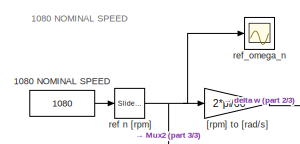
[diagram: root canvas - part 1/3, top left region]
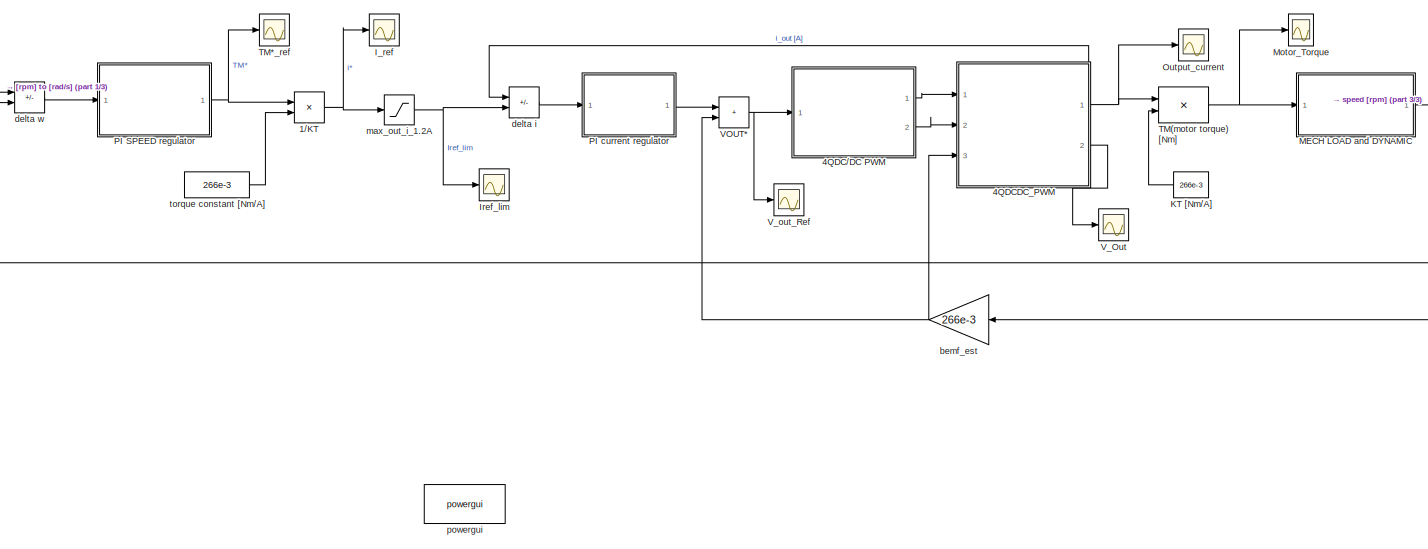
[diagram: root canvas - part 2/3, center side, full height]
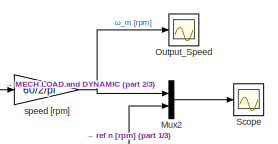
[diagram: root canvas - part 3/3, top right region]
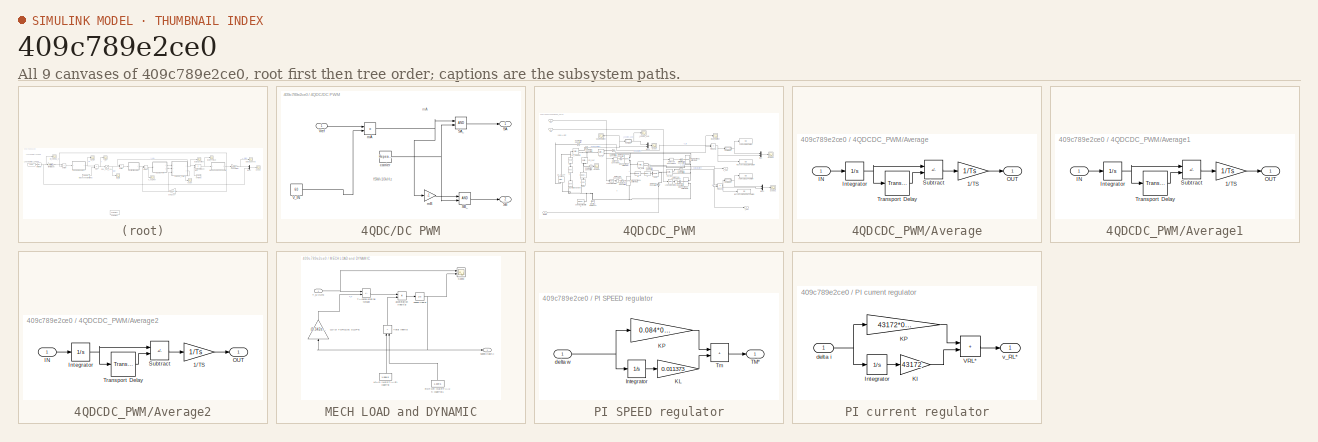
[diagram: thumbnail index - all 9 canvases of the model, root first then tree order]
MODEL slx_409c789e2ce0
KIND model
CONFIG AbsTol = auto
CONFIG EnableMultiTasking = off
CONFIG FixedStep = auto
CONFIG MaxStep = 0.5e-4
CONFIG MinStep = auto
CONFIG RelTol = 1e-3
CONFIG SampleTimeConstraint = Unconstrained
CONFIG SolverName = VariableStepAuto
CONFIG StartTime = 0.0
CONFIG StopTime = 10.0
BLOCK [Product] 1//KT
  Inputs = */
  Ports = [2, 1]
BLOCK [Constant] 1080 NOMINAL SPEED
  Value = 1080
BLOCK [SubSystem] 4QDC//DC PWM
  Ports = [1, 2]
  RequestExecContextInheritance = off
BLOCK [Outport] 4QDC//DC PWM/SA
  VectorParamsAs1DForOutWhenUnconnected = off
BLOCK [RelationalOperator] 4QDC//DC PWM/SA_
  InputSameDT = off
  OutDataTypeStr = boolean
  Ports = [2, 1]
  RndMeth = Simplest
BLOCK [Outport] 4QDC//DC PWM/SB
  Port = 2
  VectorParamsAs1DForOutWhenUnconnected = off
BLOCK [RelationalOperator] 4QDC//DC PWM/SB_
  InputSameDT = off
  OutDataTypeStr = boolean
  Ports = [2, 1]
  RndMeth = Simplest
BLOCK [Constant] 4QDC//DC PWM/V_IN
  Value = 60
BLOCK [Inport] 4QDC//DC PWM/Vref
BLOCK [Reference] 4QDC//DC PWM/carrier  REF=simulink/Sources/Repeating
Sequence
  Ports = [0, 1]
  SourceBlock = simulink/Sources/Repeating\nSequence
  SourceProductBaseCode = SL
  SourceType = Repeating table
BLOCK [Product] 4QDC//DC PWM/mA
  Inputs = */
  Ports = [2, 1]
BLOCK [Gain] 4QDC//DC PWM/mB
  Gain = -1
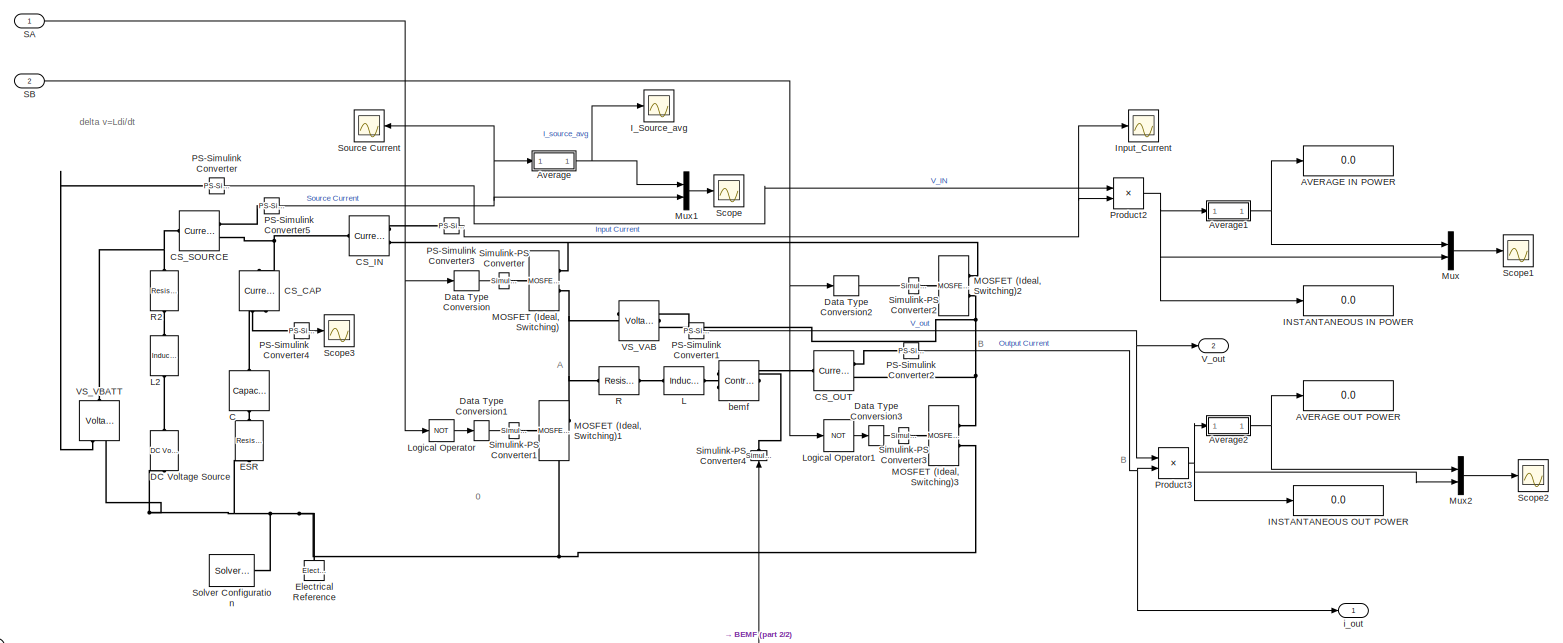
[diagram: 4QDCDC_PWM - part 1/2, most of the canvas]
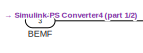
[diagram: 4QDCDC_PWM - part 2/2, bottom left region]
BLOCK [SubSystem] 4QDCDC_PWM
  Ports = [3, 2]
  RequestExecContextInheritance = off
BLOCK [Display] 4QDCDC_PWM/AVERAGE IN POWER
  Decimation = 1
  Ports = [1]
BLOCK [Display] 4QDCDC_PWM/AVERAGE OUT POWER
  Decimation = 1
  Ports = [1]
BLOCK [SubSystem] 4QDCDC_PWM/Average
  Ports = [1, 1]
  RequestExecContextInheritance = off
BLOCK [Gain] 4QDCDC_PWM/Average/1//TS
  Gain = 1/Ts
BLOCK [Inport] 4QDCDC_PWM/Average/IN
  NameLocation = top
BLOCK [Integrator] 4QDCDC_PWM/Average/Integrator
  Ports = [1, 1]
BLOCK [Outport] 4QDCDC_PWM/Average/OUT
  VectorParamsAs1DForOutWhenUnconnected = off
BLOCK [Sum] 4QDCDC_PWM/Average/Subtract
  IconShape = rectangular
  Inputs = +-
  Ports = [2, 1]
BLOCK [TransportDelay] 4QDCDC_PWM/Average/Transport Delay
  BufferSize = 5120
  DelayTime = Ts
  Ports = [1, 1]
BLOCK [SubSystem] 4QDCDC_PWM/Average1
  NameLocation = top
  Ports = [1, 1]
  RequestExecContextInheritance = off
BLOCK [Gain] 4QDCDC_PWM/Average1/1//TS
  Gain = 1/Ts
BLOCK [Inport] 4QDCDC_PWM/Average1/IN
  NameLocation = top
BLOCK [Integrator] 4QDCDC_PWM/Average1/Integrator
  Ports = [1, 1]
BLOCK [Outport] 4QDCDC_PWM/Average1/OUT
  VectorParamsAs1DForOutWhenUnconnected = off
BLOCK [Sum] 4QDCDC_PWM/Average1/Subtract
  IconShape = rectangular
  Inputs = +-
  Ports = [2, 1]
BLOCK [TransportDelay] 4QDCDC_PWM/Average1/Transport Delay
  BufferSize = 5120
  DelayTime = Ts
  Ports = [1, 1]
BLOCK [SubSystem] 4QDCDC_PWM/Average2
  Ports = [1, 1]
  RequestExecContextInheritance = off
BLOCK [Gain] 4QDCDC_PWM/Average2/1//TS
  Gain = 1/Ts
BLOCK [Inport] 4QDCDC_PWM/Average2/IN
  NameLocation = top
BLOCK [Integrator] 4QDCDC_PWM/Average2/Integrator
  Ports = [1, 1]
BLOCK [Outport] 4QDCDC_PWM/Average2/OUT
  VectorParamsAs1DForOutWhenUnconnected = off
BLOCK [Sum] 4QDCDC_PWM/Average2/Subtract
  IconShape = rectangular
  Inputs = +-
  Ports = [2, 1]
BLOCK [TransportDelay] 4QDCDC_PWM/Average2/Transport Delay
  BufferSize = 5120
  DelayTime = Ts
  Ports = [1, 1]
BLOCK [Inport] 4QDCDC_PWM/BEMF
  Port = 3
BLOCK [Reference] 4QDCDC_PWM/C  REF=fl_lib/Electrical/Electrical Elements/Capacitor
  NameLocation = left
  Ports = [0, 0, 0, 0, 0, 1, 1]
  SourceBlock = fl_lib/Electrical/Electrical Elements/Capacitor
  SourceProductBaseCode = SS
  SourceType = Capacitor
BLOCK [Reference] 4QDCDC_PWM/CS_CAP  REF=fl_lib/Electrical/Electrical Sensors/Current Sensor
  NameLocation = left
  Ports = [0, 0, 0, 0, 0, 1, 2]
  SourceBlock = fl_lib/Electrical/Electrical Sensors/Current Sensor
  SourceProductBaseCode = SS
  SourceType = Current Sensor
BLOCK [Reference] 4QDCDC_PWM/CS_IN  REF=fl_lib/Electrical/Electrical Sensors/Current Sensor
  Ports = [0, 0, 0, 0, 0, 1, 2]
  SourceBlock = fl_lib/Electrical/Electrical Sensors/Current Sensor
  SourceProductBaseCode = SS
  SourceType = Current Sensor
BLOCK [Reference] 4QDCDC_PWM/CS_OUT  REF=fl_lib/Electrical/Electrical Sensors/Current Sensor
  Ports = [0, 0, 0, 0, 0, 1, 2]
  SourceBlock = fl_lib/Electrical/Electrical Sensors/Current Sensor
  SourceProductBaseCode = SS
  SourceType = Current Sensor
BLOCK [Reference] 4QDCDC_PWM/CS_SOURCE  REF=fl_lib/Electrical/Electrical Sensors/Current Sensor
  Ports = [0, 0, 0, 0, 0, 1, 2]
  SourceBlock = fl_lib/Electrical/Electrical Sensors/Current Sensor
  SourceProductBaseCode = SS
  SourceType = Current Sensor
BLOCK [Reference] 4QDCDC_PWM/DC Voltage Source  REF=fl_lib/Electrical/Electrical Sources/DC Voltage Source
  NameLocation = right
  Ports = [0, 0, 0, 0, 0, 1, 1]
  SourceBlock = fl_lib/Electrical/Electrical Sources/DC Voltage Source
  SourceProductBaseCode = SS
  SourceType = DC Voltage Source
BLOCK [DataTypeConversion] 4QDCDC_PWM/Data Type Conversion
  RndMeth = Floor
  SaturateOnIntegerOverflow = off
BLOCK [DataTypeConversion] 4QDCDC_PWM/Data Type Conversion1
  RndMeth = Floor
  SaturateOnIntegerOverflow = off
BLOCK [DataTypeConversion] 4QDCDC_PWM/Data Type Conversion2
  RndMeth = Floor
  SaturateOnIntegerOverflow = off
BLOCK [DataTypeConversion] 4QDCDC_PWM/Data Type Conversion3
  RndMeth = Floor
  SaturateOnIntegerOverflow = off
BLOCK [Reference] 4QDCDC_PWM/ESR  REF=ee_lib/Passive/Resistor
  NameLocation = left
  Ports = [0, 0, 0, 0, 0, 1, 1]
  SourceBlock = ee_lib/Passive/Resistor
  SourceProductBaseCode = PS
  SourceType = Resistor
BLOCK [Reference] 4QDCDC_PWM/Electrical Reference  REF=fl_lib/Electrical/Electrical Elements/Electrical Reference
  NameLocation = right
  Ports = [0, 0, 0, 0, 0, 1]
  SourceBlock = fl_lib/Electrical/Electrical Elements/Electrical Reference
  SourceProductBaseCode = SS
  SourceType = Electrical Reference
BLOCK [Display] 4QDCDC_PWM/INSTANTANEOUS IN POWER
  Decimation = 1
  Ports = [1]
BLOCK [Display] 4QDCDC_PWM/INSTANTANEOUS OUT POWER
  Decimation = 1
  Ports = [1]
BLOCK [Scope] 4QDCDC_PWM/I_Source_avg
  Floating = off
  NumInputPorts = 1
  Ports = [1]
  ScopeSpecificationString = Simulink.scopes.TimeScopeBlockCfg('CurrentConfiguration', extmgr.ConfigurationSet(extmgr.Configuration('Core','General UI',true),extmgr.Configuration('Core','Source UI',true),extmgr.Configuration('Sources','WiredSimulink',true,'DataLoggingVariableName','ScopeData6'),extmgr.Configuration('Visuals','Time Domain',true),extmgr.Configuration('Tools','Plot Navigation',true),extmgr.Configuration('Tools',...<+40ch>
BLOCK [Scope] 4QDCDC_PWM/Input_Current
  Floating = off
  NumInputPorts = 1
  Ports = [1]
  ScopeSpecificationString = Simulink.scopes.TimeScopeBlockCfg('CurrentConfiguration', extmgr.ConfigurationSet(extmgr.Configuration('Core','General UI',true),extmgr.Configuration('Core','Source UI',true),extmgr.Configuration('Sources','WiredSimulink',true,'DataLoggingVariableName','ScopeData8'),extmgr.Configuration('Visuals','Time Domain',true),extmgr.Configuration('Tools','Plot Navigation',true),extmgr.Configuration('Tools',...<+40ch>
BLOCK [Reference] 4QDCDC_PWM/L  REF=ee_lib/Passive/Inductor
  Ports = [0, 0, 0, 0, 0, 1, 1]
  SourceBlock = ee_lib/Passive/Inductor
  SourceProductBaseCode = PS
  SourceType = Inductor
BLOCK [Reference] 4QDCDC_PWM/L2  REF=ee_lib/Passive/Inductor
  NameLocation = left
  Ports = [0, 0, 0, 0, 0, 1, 1]
  SourceBlock = ee_lib/Passive/Inductor
  SourceProductBaseCode = PS
  SourceType = Inductor
BLOCK [Logic] 4QDCDC_PWM/Logical Operator
  AllPortsSameDT = off
  Operator = NOT
  OutDataTypeStr = boolean
  Ports = [1, 1]
BLOCK [Logic] 4QDCDC_PWM/Logical Operator1
  AllPortsSameDT = off
  Operator = NOT
  OutDataTypeStr = boolean
  Ports = [1, 1]
BLOCK [Reference] 4QDCDC_PWM/MOSFET (Ideal, Switching)  REF=ee_lib/Semiconductors &
Converters/MOSFET
(Ideal,
Switching)
  Ports = [0, 0, 0, 0, 0, 1, 2]
  SourceBlock = ee_lib/Semiconductors &\nConverters/MOSFET\n(Ideal,\nSwitching)
  SourceProductBaseCode = PS
  SourceType = MOSFET\n(Ideal,\nSwitching)
BLOCK [Reference] 4QDCDC_PWM/MOSFET (Ideal, Switching)1  REF=ee_lib/Semiconductors &
Converters/MOSFET
(Ideal,
Switching)
  Ports = [0, 0, 0, 0, 0, 1, 2]
  SourceBlock = ee_lib/Semiconductors &\nConverters/MOSFET\n(Ideal,\nSwitching)
  SourceProductBaseCode = PS
  SourceType = MOSFET\n(Ideal,\nSwitching)
BLOCK [Reference] 4QDCDC_PWM/MOSFET (Ideal, Switching)2  REF=ee_lib/Semiconductors &
Converters/MOSFET
(Ideal,
Switching)
  Ports = [0, 0, 0, 0, 0, 1, 2]
  SourceBlock = ee_lib/Semiconductors &\nConverters/MOSFET\n(Ideal,\nSwitching)
  SourceProductBaseCode = PS
  SourceType = MOSFET\n(Ideal,\nSwitching)
BLOCK [Reference] 4QDCDC_PWM/MOSFET (Ideal, Switching)3  REF=ee_lib/Semiconductors &
Converters/MOSFET
(Ideal,
Switching)
  Ports = [0, 0, 0, 0, 0, 1, 2]
  SourceBlock = ee_lib/Semiconductors &\nConverters/MOSFET\n(Ideal,\nSwitching)
  SourceProductBaseCode = PS
  SourceType = MOSFET\n(Ideal,\nSwitching)
BLOCK [Mux] 4QDCDC_PWM/Mux
  DisplayOption = bar
  Inputs = 2
  Ports = [2, 1]
BLOCK [Mux] 4QDCDC_PWM/Mux1
  DisplayOption = bar
  Inputs = 2
  Ports = [2, 1]
BLOCK [Mux] 4QDCDC_PWM/Mux2
  DisplayOption = bar
  Inputs = 2
  Ports = [2, 1]
BLOCK [Reference] 4QDCDC_PWM/PS-Simulink Converter  REF=nesl_utility/PS-Simulink
Converter
  Ports = [0, 1, 0, 0, 0, 1]
  SourceBlock = nesl_utility/PS-Simulink\nConverter
  SourceProductBaseCode = SS
  SourceType = PS-Simulink\nConverter
BLOCK [Reference] 4QDCDC_PWM/PS-Simulink Converter1  REF=nesl_utility/PS-Simulink
Converter
  Ports = [0, 1, 0, 0, 0, 1]
  SourceBlock = nesl_utility/PS-Simulink\nConverter
  SourceProductBaseCode = SS
  SourceType = PS-Simulink\nConverter
BLOCK [Reference] 4QDCDC_PWM/PS-Simulink Converter2  REF=nesl_utility/PS-Simulink
Converter
  Ports = [0, 1, 0, 0, 0, 1]
  SourceBlock = nesl_utility/PS-Simulink\nConverter
  SourceProductBaseCode = SS
  SourceType = PS-Simulink\nConverter
BLOCK [Reference] 4QDCDC_PWM/PS-Simulink Converter3  REF=nesl_utility/PS-Simulink
Converter
  Ports = [0, 1, 0, 0, 0, 1]
  SourceBlock = nesl_utility/PS-Simulink\nConverter
  SourceProductBaseCode = SS
  SourceType = PS-Simulink\nConverter
BLOCK [Reference] 4QDCDC_PWM/PS-Simulink Converter4  REF=nesl_utility/PS-Simulink
Converter
  Ports = [0, 1, 0, 0, 0, 1]
  SourceBlock = nesl_utility/PS-Simulink\nConverter
  SourceProductBaseCode = SS
  SourceType = PS-Simulink\nConverter
BLOCK [Reference] 4QDCDC_PWM/PS-Simulink Converter5  REF=nesl_utility/PS-Simulink
Converter
  Ports = [0, 1, 0, 0, 0, 1]
  SourceBlock = nesl_utility/PS-Simulink\nConverter
  SourceProductBaseCode = SS
  SourceType = PS-Simulink\nConverter
BLOCK [Product] 4QDCDC_PWM/Product2
  Ports = [2, 1]
BLOCK [Product] 4QDCDC_PWM/Product3
  Ports = [2, 1]
BLOCK [Reference] 4QDCDC_PWM/R  REF=ee_lib/Passive/Resistor
  Ports = [0, 0, 0, 0, 0, 1, 1]
  SourceBlock = ee_lib/Passive/Resistor
  SourceProductBaseCode = PS
  SourceType = Resistor
BLOCK [Reference] 4QDCDC_PWM/R2  REF=ee_lib/Passive/Resistor
  NameLocation = left
  Ports = [0, 0, 0, 0, 0, 1, 1]
  SourceBlock = ee_lib/Passive/Resistor
  SourceProductBaseCode = PS
  SourceType = Resistor
BLOCK [Inport] 4QDCDC_PWM/SA
BLOCK [Inport] 4QDCDC_PWM/SB
  Port = 2
BLOCK [Scope] 4QDCDC_PWM/Scope
  Floating = off
  NumInputPorts = 1
  Ports = [1]
  ScopeSpecificationString = Simulink.scopes.TimeScopeBlockCfg('CurrentConfiguration', extmgr.ConfigurationSet(extmgr.Configuration('Core','General UI',true),extmgr.Configuration('Core','Source UI',true),extmgr.Configuration('Sources','WiredSimulink',true,'DataLoggingVariableName','ScopeData1'),extmgr.Configuration('Visuals','Time Domain',true,'SerializedDisplays',{struct('MinYLimReal','-6.5144','MaxYLimReal','58.62956','YLab...<+1527ch>
BLOCK [Scope] 4QDCDC_PWM/Scope1
  Floating = off
  NumInputPorts = 1
  Ports = [1]
  ScopeSpecificationString = Simulink.scopes.TimeScopeBlockCfg('CurrentConfiguration', extmgr.ConfigurationSet(extmgr.Configuration('Core','General UI',true),extmgr.Configuration('Core','Source UI',true),extmgr.Configuration('Sources','WiredSimulink',true,'DataLoggingVariableName','ScopeData12'),extmgr.Configuration('Visuals','Time Domain',true),extmgr.Configuration('Tools','Plot Navigation',true),extmgr.Configuration('Tools'...<+41ch>
BLOCK [Scope] 4QDCDC_PWM/Scope2
  Floating = off
  NumInputPorts = 1
  Ports = [1]
  ScopeSpecificationString = Simulink.scopes.TimeScopeBlockCfg('CurrentConfiguration', extmgr.ConfigurationSet(extmgr.Configuration('Core','General UI',true),extmgr.Configuration('Core','Source UI',true),extmgr.Configuration('Sources','WiredSimulink',true,'DataLoggingVariableName','ScopeData13'),extmgr.Configuration('Visuals','Time Domain',true),extmgr.Configuration('Tools','Plot Navigation',true),extmgr.Configuration('Tools'...<+41ch>
BLOCK [Scope] 4QDCDC_PWM/Scope3
  Floating = off
  NumInputPorts = 1
  Ports = [1]
  ScopeSpecificationString = Simulink.scopes.TimeScopeBlockCfg('CurrentConfiguration', extmgr.ConfigurationSet(extmgr.Configuration('Core','General UI',true),extmgr.Configuration('Core','Source UI',true),extmgr.Configuration('Sources','WiredSimulink',true,'DataLoggingVariableName','ScopeData15'),extmgr.Configuration('Visuals','Time Domain',true,'SerializedDisplays',{struct('MinYLimReal','-3.8667','MaxYLimReal','34.80091','YLa...<+1384ch>
BLOCK [Reference] 4QDCDC_PWM/Simulink-PS Converter  REF=nesl_utility/Simulink-PS
Converter
  Ports = [1, 0, 0, 0, 0, 0, 1]
  SourceBlock = nesl_utility/Simulink-PS\nConverter
  SourceProductBaseCode = SS
  SourceType = Simulink-PS\nConverter
BLOCK [Reference] 4QDCDC_PWM/Simulink-PS Converter1  REF=nesl_utility/Simulink-PS
Converter
  Ports = [1, 0, 0, 0, 0, 0, 1]
  SourceBlock = nesl_utility/Simulink-PS\nConverter
  SourceProductBaseCode = SS
  SourceType = Simulink-PS\nConverter
BLOCK [Reference] 4QDCDC_PWM/Simulink-PS Converter2  REF=nesl_utility/Simulink-PS
Converter
  Ports = [1, 0, 0, 0, 0, 0, 1]
  SourceBlock = nesl_utility/Simulink-PS\nConverter
  SourceProductBaseCode = SS
  SourceType = Simulink-PS\nConverter
BLOCK [Reference] 4QDCDC_PWM/Simulink-PS Converter3  REF=nesl_utility/Simulink-PS
Converter
  Ports = [1, 0, 0, 0, 0, 0, 1]
  SourceBlock = nesl_utility/Simulink-PS\nConverter
  SourceProductBaseCode = SS
  SourceType = Simulink-PS\nConverter
BLOCK [Reference] 4QDCDC_PWM/Simulink-PS Converter4  REF=nesl_utility/Simulink-PS
Converter
  NameLocation = right
  Ports = [1, 0, 0, 0, 0, 0, 1]
  SourceBlock = nesl_utility/Simulink-PS\nConverter
  SourceProductBaseCode = SS
  SourceType = Simulink-PS\nConverter
BLOCK [Reference] 4QDCDC_PWM/Solver Configuration  REF=nesl_utility/Solver
Configuration
  Ports = [0, 0, 0, 0, 0, 0, 1]
  SourceBlock = nesl_utility/Solver\nConfiguration
  SourceProductBaseCode = SS
  SourceType = Solver\nConfiguration
BLOCK [Scope] 4QDCDC_PWM/Source Current
  Floating = off
  NameLocation = top
  NumInputPorts = 1
  Ports = [1]
  ScopeSpecificationString = Simulink.scopes.TimeScopeBlockCfg('CurrentConfiguration', extmgr.ConfigurationSet(extmgr.Configuration('Core','General UI',true),extmgr.Configuration('Core','Source UI',true),extmgr.Configuration('Sources','WiredSimulink',true,'DataLoggingVariableName','ScopeData7'),extmgr.Configuration('Visuals','Time Domain',true),extmgr.Configuration('Tools','Plot Navigation',true),extmgr.Configuration('Tools',...<+40ch>
BLOCK [Reference] 4QDCDC_PWM/VS_VAB  REF=fl_lib/Electrical/Electrical Sensors/Voltage Sensor
  NameLocation = top
  Ports = [0, 0, 0, 0, 0, 1, 2]
  SourceBlock = fl_lib/Electrical/Electrical Sensors/Voltage Sensor
  SourceProductBaseCode = SS
  SourceType = Voltage Sensor
BLOCK [Reference] 4QDCDC_PWM/VS_VBATT  REF=fl_lib/Electrical/Electrical Sensors/Voltage Sensor
  NameLocation = left
  Ports = [0, 0, 0, 0, 0, 1, 2]
  SourceBlock = fl_lib/Electrical/Electrical Sensors/Voltage Sensor
  SourceProductBaseCode = SS
  SourceType = Voltage Sensor
BLOCK [Outport] 4QDCDC_PWM/V_out
  Port = 2
  VectorParamsAs1DForOutWhenUnconnected = off
BLOCK [Reference] 4QDCDC_PWM/bemf  REF=fl_lib/Electrical/Electrical Sources/Controlled Voltage
Source
  Ports = [0, 0, 0, 0, 0, 1, 2]
  SourceBlock = fl_lib/Electrical/Electrical Sources/Controlled Voltage\nSource
  SourceProductBaseCode = SS
  SourceType = Controlled Voltage\nSource
BLOCK [Outport] 4QDCDC_PWM/i_out
  VectorParamsAs1DForOutWhenUnconnected = off
BLOCK [Scope] I_ref
  Floating = off
  NumInputPorts = 1
  Ports = [1]
  ScopeSpecificationString = Simulink.scopes.TimeScopeBlockCfg('CurrentConfiguration', extmgr.ConfigurationSet(extmgr.Configuration('Core','General UI',true),extmgr.Configuration('Core','Source UI',true),extmgr.Configuration('Sources','WiredSimulink',true,'DataLoggingVariableName','ScopeData3'),extmgr.Configuration('Visuals','Time Domain',true),extmgr.Configuration('Tools','Plot Navigation',true),extmgr.Configuration('Tools',...<+40ch>
BLOCK [Scope] Iref_lim
  Floating = off
  NumInputPorts = 1
  Ports = [1]
  ScopeSpecificationString = Simulink.scopes.TimeScopeBlockCfg('CurrentConfiguration', extmgr.ConfigurationSet(extmgr.Configuration('Core','General UI',true),extmgr.Configuration('Core','Source UI',true),extmgr.Configuration('Sources','WiredSimulink',true,'DataLoggingVariableName','ScopeData4'),extmgr.Configuration('Visuals','Time Domain',true),extmgr.Configuration('Tools','Plot Navigation',true),extmgr.Configuration('Tools',...<+40ch>
BLOCK [Constant] KT [Nm//A]
  NameLocation = top
  Value = 266e-3
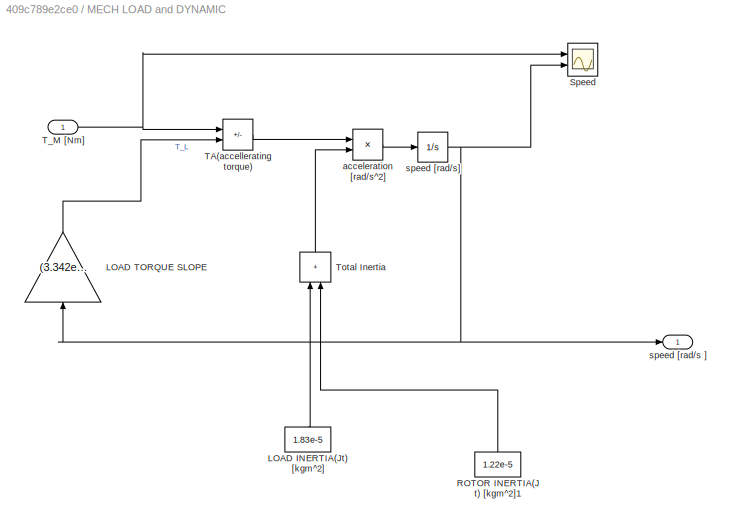
BLOCK [SubSystem] MECH LOAD and DYNAMIC
  Ports = [1, 1]
  RequestExecContextInheritance = off
BLOCK [Constant] MECH LOAD and DYNAMIC/LOAD INERTIA(Jt) [kgm^2]
  NameLocation = right
  Value = 1.83e-5
BLOCK [Gain] MECH LOAD and DYNAMIC/LOAD TORQUE SLOPE
  Gain = (3.342e-04)
  NameLocation = right
BLOCK [Constant] MECH LOAD and DYNAMIC/ROTOR INERTIA(Jt) [kgm^2]1
  NameLocation = right
  Value = 1.22e-5
BLOCK [Scope] MECH LOAD and DYNAMIC/Speed
  Floating = off
  NumInputPorts = 2
  Ports = [2]
  ScopeSpecificationString = Simulink.scopes.TimeScopeBlockCfg('CurrentConfiguration', extmgr.ConfigurationSet(extmgr.Configuration('Core','General UI',true),extmgr.Configuration('Core','Source UI',true),extmgr.Configuration('Sources','WiredSimulink',true,'DataLoggingVariableName','ScopeData1'),extmgr.Configuration('Visuals','Time Domain',true,'SerializedDisplays',{struct('MinYLimReal','-0.94711','MaxYLimReal','3.52395','YLab...<+2167ch>
BLOCK [Sum] MECH LOAD and DYNAMIC/TA(accellerating torque)
  IconShape = rectangular
  Inputs = +-
  Ports = [2, 1]
BLOCK [Inport] MECH LOAD and DYNAMIC/T_M [Nm]
BLOCK [Sum] MECH LOAD and DYNAMIC/Total Inertia
  IconShape = rectangular
  NameLocation = right
  Ports = [2, 1]
BLOCK [Product] MECH LOAD and DYNAMIC/acceleration [rad//s^2]
  Inputs = */
  Ports = [2, 1]
BLOCK [Outport] MECH LOAD and DYNAMIC/speed [rad//s ]
  NameLocation = top
  VectorParamsAs1DForOutWhenUnconnected = off
BLOCK [Integrator] MECH LOAD and DYNAMIC/speed [rad//s]
  Ports = [1, 1]
BLOCK [Scope] Motor_Torque
  Floating = off
  NumInputPorts = 1
  Ports = [1]
  ScopeSpecificationString = Simulink.scopes.TimeScopeBlockCfg('CurrentConfiguration', extmgr.ConfigurationSet(extmgr.Configuration('Core','General UI',true),extmgr.Configuration('Core','Source UI',true),extmgr.Configuration('Sources','WiredSimulink',true,'DataLoggingVariableName','ScopeData10'),extmgr.Configuration('Visuals','Time Domain',true),extmgr.Configuration('Tools','Plot Navigation',true),extmgr.Configuration('Tools'...<+41ch>
BLOCK [Mux] Mux2
  DisplayOption = bar
  Inputs = 2
  Ports = [2, 1]
BLOCK [Scope] Output_Speed
  Floating = off
  NumInputPorts = 1
  Ports = [1]
  ScopeSpecificationString = Simulink.scopes.TimeScopeBlockCfg('CurrentConfiguration', extmgr.ConfigurationSet(extmgr.Configuration('Core','General UI',true),extmgr.Configuration('Core','Source UI',true),extmgr.Configuration('Sources','WiredSimulink',true,'DataLoggingVariableName','ScopeData11'),extmgr.Configuration('Visuals','Time Domain',true),extmgr.Configuration('Tools','Plot Navigation',true),extmgr.Configuration('Tools'...<+41ch>
BLOCK [Scope] Output_current
  Floating = off
  NumInputPorts = 1
  Ports = [1]
  ScopeSpecificationString = Simulink.scopes.TimeScopeBlockCfg('CurrentConfiguration', extmgr.ConfigurationSet(extmgr.Configuration('Core','General UI',true),extmgr.Configuration('Core','Source UI',true),extmgr.Configuration('Sources','WiredSimulink',true,'DataLoggingVariableName','ScopeData9'),extmgr.Configuration('Visuals','Time Domain',true),extmgr.Configuration('Tools','Plot Navigation',true),extmgr.Configuration('Tools',...<+40ch>
BLOCK [SubSystem] PI SPEED regulator
  Ports = [1, 1]
  RequestExecContextInheritance = off
BLOCK [Integrator] PI SPEED regulator/Integrator
  Ports = [1, 1]
BLOCK [Gain] PI SPEED regulator/KL
  Gain = 0.011373
BLOCK [Gain] PI SPEED regulator/KP
  Gain = 0.084*0.011373
BLOCK [Outport] PI SPEED regulator/TM*
  VectorParamsAs1DForOutWhenUnconnected = off
BLOCK [Sum] PI SPEED regulator/Tm
  IconShape = rectangular
  Ports = [2, 1]
BLOCK [Inport] PI SPEED regulator/delta w
BLOCK [SubSystem] PI current regulator
  Ports = [1, 1]
  RequestExecContextInheritance = off
BLOCK [Integrator] PI current regulator/Integrator
  Ports = [1, 1]
BLOCK [Gain] PI current regulator/KI
  Gain = 43172
BLOCK [Gain] PI current regulator/KP
  Gain = 43172*0.00013
BLOCK [Sum] PI current regulator/VRL*
  IconShape = rectangular
  Ports = [2, 1]
BLOCK [Inport] PI current regulator/delta i
BLOCK [Outport] PI current regulator/v_RL*
  VectorParamsAs1DForOutWhenUnconnected = off
BLOCK [Scope] Scope
  Floating = off
  NumInputPorts = 1
  Ports = [1]
  ScopeSpecificationString = Simulink.scopes.TimeScopeBlockCfg('CurrentConfiguration', extmgr.ConfigurationSet(extmgr.Configuration('Core','General UI',true),extmgr.Configuration('Core','Source UI',true),extmgr.Configuration('Sources','WiredSimulink',true,'DataLoggingVariableName','ScopeData2'),extmgr.Configuration('Visuals','Time Domain',true,'SerializedDisplays',{struct('MinYLimReal','-135.00000','MaxYLimReal','1215.00000',...<+1472ch>
BLOCK [Product] TM(motor torque) [Nm]
  Ports = [2, 1]
BLOCK [Scope] TM*_ref
  Floating = off
  NumInputPorts = 1
  Ports = [1]
  ScopeSpecificationString = Simulink.scopes.TimeScopeBlockCfg('CurrentConfiguration', extmgr.ConfigurationSet(extmgr.Configuration('Core','General UI',true),extmgr.Configuration('Core','Source UI',true),extmgr.Configuration('Sources','WiredSimulink',true,'DataLoggingVariableName','ScopeData2'),extmgr.Configuration('Visuals','Time Domain',true,'SerializedDisplays',{struct('MinYLimReal','-0.05429','MaxYLimReal','-0.05399','YLa...<+1364ch>
BLOCK [Sum] VOUT*
  IconShape = rectangular
  Ports = [2, 1]
BLOCK [Scope] V_Out
  Floating = off
  NumInputPorts = 1
  Ports = [1]
  ScopeSpecificationString = Simulink.scopes.TimeScopeBlockCfg('CurrentConfiguration', extmgr.ConfigurationSet(extmgr.Configuration('Core','General UI',true),extmgr.Configuration('Core','Source UI',true),extmgr.Configuration('Sources','WiredSimulink',true,'DataLoggingVariableName','ScopeData14'),extmgr.Configuration('Visuals','Time Domain',true),extmgr.Configuration('Tools','Plot Navigation',true),extmgr.Configuration('Tools'...<+41ch>
BLOCK [Scope] V_out_Ref
  Floating = off
  NumInputPorts = 1
  Ports = [1]
  ScopeSpecificationString = Simulink.scopes.TimeScopeBlockCfg('CurrentConfiguration', extmgr.ConfigurationSet(extmgr.Configuration('Core','General UI',true),extmgr.Configuration('Core','Source UI',true),extmgr.Configuration('Sources','WiredSimulink',true,'DataLoggingVariableName','ScopeData5'),extmgr.Configuration('Visuals','Time Domain',true),extmgr.Configuration('Tools','Plot Navigation',true),extmgr.Configuration('Tools',...<+40ch>
BLOCK [Gain] [rpm] to [rad//s]
  Gain = 2*pi/60
BLOCK [Gain] bemf_est
  Gain = 266e-3
  NameLocation = top
BLOCK [Sum] delta i
  IconShape = rectangular
  Inputs = -+
  Ports = [2, 1]
BLOCK [Sum] delta w
  IconShape = rectangular
  Inputs = +-
  Ports = [2, 1]
BLOCK [Saturate] max_out_i_1.2A
  LowerLimit = -1.2
  UpperLimit = 1.2
BLOCK [Reference] powergui  REF=powerlib/powergui
  Ports = []
  Priority = 1
  SourceBlock = powerlib/powergui
  SourceProductBaseCode = PS
  SourceType = PSB option menu block
BLOCK [Reference] ref n [rpm]  REF=simulink/Math
Operations/Slider
Gain
  Ports = [1, 1]
  SourceBlock = simulink/Math\nOperations/Slider\nGain
  SourceProductBaseCode = SL
  SourceType = Slider Gain
BLOCK [Scope] ref_omega_n
  Floating = off
  NumInputPorts = 1
  Ports = [1]
  ScopeSpecificationString = Simulink.scopes.TimeScopeBlockCfg('CurrentConfiguration', extmgr.ConfigurationSet(extmgr.Configuration('Core','General UI',true),extmgr.Configuration('Core','Source UI',true),extmgr.Configuration('Sources','WiredSimulink',true,'DataLoggingVariableName','ScopeData1'),extmgr.Configuration('Visuals','Time Domain',true),extmgr.Configuration('Tools','Plot Navigation',true),extmgr.Configuration('Tools',...<+40ch>
BLOCK [Gain] speed [rpm]
  Gain = 60/2/pi
BLOCK [Constant] torque constant [Nm//A]
  Value = 266e-3
ANNOTATION (root): 1080 NOMINAL SPEED
ANNOTATION 4QDC//DC PWM: fSW=10kHz
ANNOTATION 4QDC//DC PWM: mA
ANNOTATION 4QDCDC_PWM: 0
ANNOTATION 4QDCDC_PWM: A
ANNOTATION 4QDCDC_PWM: B
ANNOTATION 4QDCDC_PWM: delta v=Ldi/dt
NET 1//KT:1 -> I_ref:1, max_out_i_1.2A:1
LINE 1080 NOMINAL SPEED:1 -> ref n [rpm]:1
LINE 4QDC//DC PWM/SA_:1 -> 4QDC//DC PWM/SA:1
LINE 4QDC//DC PWM/SB_:1 -> 4QDC//DC PWM/SB:1
LINE 4QDC//DC PWM/V_IN:1 -> 4QDC//DC PWM/mA:2
LINE 4QDC//DC PWM/Vref:1 -> 4QDC//DC PWM/mA:1
NET 4QDC//DC PWM/carrier:1 -> 4QDC//DC PWM/SA_:2, 4QDC//DC PWM/SB_:2
NET 4QDC//DC PWM/mA:1 -> 4QDC//DC PWM/SA_:1, 4QDC//DC PWM/mB:1
LINE 4QDC//DC PWM/mB:1 -> 4QDC//DC PWM/SB_:1
LINE 4QDC//DC PWM:1 -> 4QDCDC_PWM:1
LINE 4QDC//DC PWM:2 -> 4QDCDC_PWM:2
LINE 4QDCDC_PWM/Average/1//TS:1 -> 4QDCDC_PWM/Average/OUT:1
LINE 4QDCDC_PWM/Average/IN:1 -> 4QDCDC_PWM/Average/Integrator:1
NET 4QDCDC_PWM/Average/Integrator:1 -> 4QDCDC_PWM/Average/Subtract:1, 4QDCDC_PWM/Average/Transport Delay:1
LINE 4QDCDC_PWM/Average/Subtract:1 -> 4QDCDC_PWM/Average/1//TS:1
LINE 4QDCDC_PWM/Average/Transport Delay:1 -> 4QDCDC_PWM/Average/Subtract:2
LINE 4QDCDC_PWM/Average1/1//TS:1 -> 4QDCDC_PWM/Average1/OUT:1
LINE 4QDCDC_PWM/Average1/IN:1 -> 4QDCDC_PWM/Average1/Integrator:1
NET 4QDCDC_PWM/Average1/Integrator:1 -> 4QDCDC_PWM/Average1/Subtract:1, 4QDCDC_PWM/Average1/Transport Delay:1
LINE 4QDCDC_PWM/Average1/Subtract:1 -> 4QDCDC_PWM/Average1/1//TS:1
LINE 4QDCDC_PWM/Average1/Transport Delay:1 -> 4QDCDC_PWM/Average1/Subtract:2
NET 4QDCDC_PWM/Average1:1 -> 4QDCDC_PWM/AVERAGE IN POWER:1, 4QDCDC_PWM/Mux:1
LINE 4QDCDC_PWM/Average2/1//TS:1 -> 4QDCDC_PWM/Average2/OUT:1
LINE 4QDCDC_PWM/Average2/IN:1 -> 4QDCDC_PWM/Average2/Integrator:1
NET 4QDCDC_PWM/Average2/Integrator:1 -> 4QDCDC_PWM/Average2/Subtract:1, 4QDCDC_PWM/Average2/Transport Delay:1
LINE 4QDCDC_PWM/Average2/Subtract:1 -> 4QDCDC_PWM/Average2/1//TS:1
LINE 4QDCDC_PWM/Average2/Transport Delay:1 -> 4QDCDC_PWM/Average2/Subtract:2
NET 4QDCDC_PWM/Average2:1 -> 4QDCDC_PWM/AVERAGE OUT POWER:1, 4QDCDC_PWM/Mux2:1
NET 4QDCDC_PWM/Average:1 -> 4QDCDC_PWM/I_Source_avg:1, 4QDCDC_PWM/Mux1:1
LINE 4QDCDC_PWM/BEMF:1 -> 4QDCDC_PWM/Simulink-PS Converter4:1
LINE 4QDCDC_PWM/Data Type Conversion1:1 -> 4QDCDC_PWM/Simulink-PS Converter1:1
LINE 4QDCDC_PWM/Data Type Conversion2:1 -> 4QDCDC_PWM/Simulink-PS Converter2:1
LINE 4QDCDC_PWM/Data Type Conversion3:1 -> 4QDCDC_PWM/Simulink-PS Converter3:1
LINE 4QDCDC_PWM/Data Type Conversion:1 -> 4QDCDC_PWM/Simulink-PS Converter:1
LINE 4QDCDC_PWM/Logical Operator1:1 -> 4QDCDC_PWM/Data Type Conversion3:1
LINE 4QDCDC_PWM/Logical Operator:1 -> 4QDCDC_PWM/Data Type Conversion1:1
LINE 4QDCDC_PWM/Mux1:1 -> 4QDCDC_PWM/Scope:1
LINE 4QDCDC_PWM/Mux2:1 -> 4QDCDC_PWM/Scope2:1
LINE 4QDCDC_PWM/Mux:1 -> 4QDCDC_PWM/Scope1:1
NET 4QDCDC_PWM/PS-Simulink Converter1:1 -> 4QDCDC_PWM/Product3:1, 4QDCDC_PWM/V_out:1
NET 4QDCDC_PWM/PS-Simulink Converter2:1 -> 4QDCDC_PWM/Product3:2, 4QDCDC_PWM/i_out:1
NET 4QDCDC_PWM/PS-Simulink Converter3:1 -> 4QDCDC_PWM/Input_Current:1, 4QDCDC_PWM/Product2:2
LINE 4QDCDC_PWM/PS-Simulink Converter4:1 -> 4QDCDC_PWM/Scope3:1
NET 4QDCDC_PWM/PS-Simulink Converter5:1 -> 4QDCDC_PWM/Average:1, 4QDCDC_PWM/Mux1:2, 4QDCDC_PWM/Source Current:1
LINE 4QDCDC_PWM/PS-Simulink Converter:1 -> 4QDCDC_PWM/Product2:1
NET 4QDCDC_PWM/Product2:1 -> 4QDCDC_PWM/Average1:1, 4QDCDC_PWM/INSTANTANEOUS IN POWER:1, 4QDCDC_PWM/Mux:2
NET 4QDCDC_PWM/Product3:1 -> 4QDCDC_PWM/Average2:1, 4QDCDC_PWM/INSTANTANEOUS OUT POWER:1, 4QDCDC_PWM/Mux2:2
NET 4QDCDC_PWM/SA:1 -> 4QDCDC_PWM/Data Type Conversion:1, 4QDCDC_PWM/Logical Operator:1
NET 4QDCDC_PWM/SB:1 -> 4QDCDC_PWM/Data Type Conversion2:1, 4QDCDC_PWM/Logical Operator1:1
NET 4QDCDC_PWM:1 -> Output_current:1, TM(motor torque) [Nm]:1, delta i:1
LINE 4QDCDC_PWM:2 -> V_Out:1
LINE KT [Nm//A]:1 -> TM(motor torque) [Nm]:2
LINE MECH LOAD and DYNAMIC/LOAD INERTIA(Jt) [kgm^2]:1 -> MECH LOAD and DYNAMIC/Total Inertia:1
LINE MECH LOAD and DYNAMIC/LOAD TORQUE SLOPE:1 -> MECH LOAD and DYNAMIC/TA(accellerating torque):2
LINE MECH LOAD and DYNAMIC/ROTOR INERTIA(Jt) [kgm^2]1:1 -> MECH LOAD and DYNAMIC/Total Inertia:2
LINE MECH LOAD and DYNAMIC/TA(accellerating torque):1 -> MECH LOAD and DYNAMIC/acceleration [rad//s^2]:1
NET MECH LOAD and DYNAMIC/T_M [Nm]:1 -> MECH LOAD and DYNAMIC/Speed:1, MECH LOAD and DYNAMIC/TA(accellerating torque):1
LINE MECH LOAD and DYNAMIC/Total Inertia:1 -> MECH LOAD and DYNAMIC/acceleration [rad//s^2]:2
LINE MECH LOAD and DYNAMIC/acceleration [rad//s^2]:1 -> MECH LOAD and DYNAMIC/speed [rad//s]:1
NET MECH LOAD and DYNAMIC/speed [rad//s]:1 -> MECH LOAD and DYNAMIC/LOAD TORQUE SLOPE:1, MECH LOAD and DYNAMIC/Speed:2, MECH LOAD and DYNAMIC/speed [rad//s ]:1
NET MECH LOAD and DYNAMIC:1 -> bemf_est:1, delta w:2, speed [rpm]:1
LINE Mux2:1 -> Scope:1
LINE PI SPEED regulator/Integrator:1 -> PI SPEED regulator/KL:1
LINE PI SPEED regulator/KL:1 -> PI SPEED regulator/Tm:2
LINE PI SPEED regulator/KP:1 -> PI SPEED regulator/Tm:1
LINE PI SPEED regulator/Tm:1 -> PI SPEED regulator/TM*:1
NET PI SPEED regulator/delta w:1 -> PI SPEED regulator/Integrator:1, PI SPEED regulator/KP:1
NET PI SPEED regulator:1 -> 1//KT:1, TM*_ref:1
LINE PI current regulator/Integrator:1 -> PI current regulator/KI:1
LINE PI current regulator/KI:1 -> PI current regulator/VRL*:2
LINE PI current regulator/KP:1 -> PI current regulator/VRL*:1
LINE PI current regulator/VRL*:1 -> PI current regulator/v_RL*:1
NET PI current regulator/delta i:1 -> PI current regulator/Integrator:1, PI current regulator/KP:1
LINE PI current regulator:1 -> VOUT*:1
NET TM(motor torque) [Nm]:1 -> MECH LOAD and DYNAMIC:1, Motor_Torque:1
NET VOUT*:1 -> 4QDC//DC PWM:1, V_out_Ref:1
LINE [rpm] to [rad//s]:1 -> delta w:1
NET bemf_est:1 -> 4QDCDC_PWM:3, VOUT*:2
LINE delta i:1 -> PI current regulator:1
LINE delta w:1 -> PI SPEED regulator:1
NET max_out_i_1.2A:1 -> Iref_lim:1, delta i:2
NET ref n [rpm]:1 -> Mux2:2, [rpm] to [rad//s]:1, ref_omega_n:1
NET speed [rpm]:1 -> Mux2:1, Output_Speed:1
LINE torque constant [Nm//A]:1 -> 1//KT:2
PLINE 4QDCDC_PWM/C:LConn1 -- 4QDCDC_PWM/CS_CAP:RConn2
PLINE 4QDCDC_PWM/C:RConn1 -- 4QDCDC_PWM/ESR:LConn1
PNET net1: 4QDCDC_PWM/CS_CAP:LConn1 -- 4QDCDC_PWM/CS_IN:LConn1 -- 4QDCDC_PWM/CS_SOURCE:RConn2
PLINE 4QDCDC_PWM/CS_CAP:RConn1 -- 4QDCDC_PWM/PS-Simulink Converter4:LConn1
PLINE 4QDCDC_PWM/CS_IN:RConn1 -- 4QDCDC_PWM/PS-Simulink Converter3:LConn1
PNET net2: 4QDCDC_PWM/CS_IN:RConn2 -- 4QDCDC_PWM/MOSFET (Ideal, Switching)2:RConn1 -- 4QDCDC_PWM/MOSFET (Ideal, Switching):RConn1
PLINE 4QDCDC_PWM/CS_OUT:LConn1 -- 4QDCDC_PWM/bemf:RConn2
PLINE 4QDCDC_PWM/CS_OUT:RConn1 -- 4QDCDC_PWM/PS-Simulink Converter2:LConn1
PNET net3: 4QDCDC_PWM/CS_OUT:RConn2 -- 4QDCDC_PWM/MOSFET (Ideal, Switching)2:RConn2 -- 4QDCDC_PWM/MOSFET (Ideal, Switching)3:RConn1 -- 4QDCDC_PWM/VS_VAB:RConn2
PNET net4: 4QDCDC_PWM/CS_SOURCE:LConn1 -- 4QDCDC_PWM/R2:LConn1 -- 4QDCDC_PWM/VS_VBATT:LConn1
PLINE 4QDCDC_PWM/CS_SOURCE:RConn1 -- 4QDCDC_PWM/PS-Simulink Converter5:LConn1
PLINE 4QDCDC_PWM/DC Voltage Source:LConn1 -- 4QDCDC_PWM/L2:RConn1
PNET net5: 4QDCDC_PWM/DC Voltage Source:RConn1 -- 4QDCDC_PWM/ESR:RConn1 -- 4QDCDC_PWM/Electrical Reference:LConn1 -- 4QDCDC_PWM/MOSFET (Ideal, Switching)1:RConn2 -- 4QDCDC_PWM/MOSFET (Ideal, Switching)3:RConn2 -- 4QDCDC_PWM/Solver Configuration:RConn1 -- 4QDCDC_PWM/VS_VBATT:RConn2
PLINE 4QDCDC_PWM/L2:LConn1 -- 4QDCDC_PWM/R2:RConn1
PLINE 4QDCDC_PWM/L:LConn1 -- 4QDCDC_PWM/R:RConn1
PLINE 4QDCDC_PWM/L:RConn1 -- 4QDCDC_PWM/bemf:LConn1
PLINE 4QDCDC_PWM/MOSFET (Ideal, Switching)1:LConn1 -- 4QDCDC_PWM/Simulink-PS Converter1:RConn1
PNET net6: 4QDCDC_PWM/MOSFET (Ideal, Switching)1:RConn1 -- 4QDCDC_PWM/MOSFET (Ideal, Switching):RConn2 -- 4QDCDC_PWM/R:LConn1 -- 4QDCDC_PWM/VS_VAB:LConn1
PLINE 4QDCDC_PWM/MOSFET (Ideal, Switching)2:LConn1 -- 4QDCDC_PWM/Simulink-PS Converter2:RConn1
PLINE 4QDCDC_PWM/MOSFET (Ideal, Switching)3:LConn1 -- 4QDCDC_PWM/Simulink-PS Converter3:RConn1
PLINE 4QDCDC_PWM/MOSFET (Ideal, Switching):LConn1 -- 4QDCDC_PWM/Simulink-PS Converter:RConn1
PLINE 4QDCDC_PWM/PS-Simulink Converter1:LConn1 -- 4QDCDC_PWM/VS_VAB:RConn1
PLINE 4QDCDC_PWM/PS-Simulink Converter:LConn1 -- 4QDCDC_PWM/VS_VBATT:RConn1
PLINE 4QDCDC_PWM/Simulink-PS Converter4:RConn1 -- 4QDCDC_PWM/bemf:RConn1
note: NET lines group one-source signal fan-out (src -> all destinations, sorted); 1:1 wires keep LINE; PNET lines group multi-terminal physical nets as a canonical sorted terminal list (undirected conserving connections); 2-terminal nets keep the pairwise PLINE form
